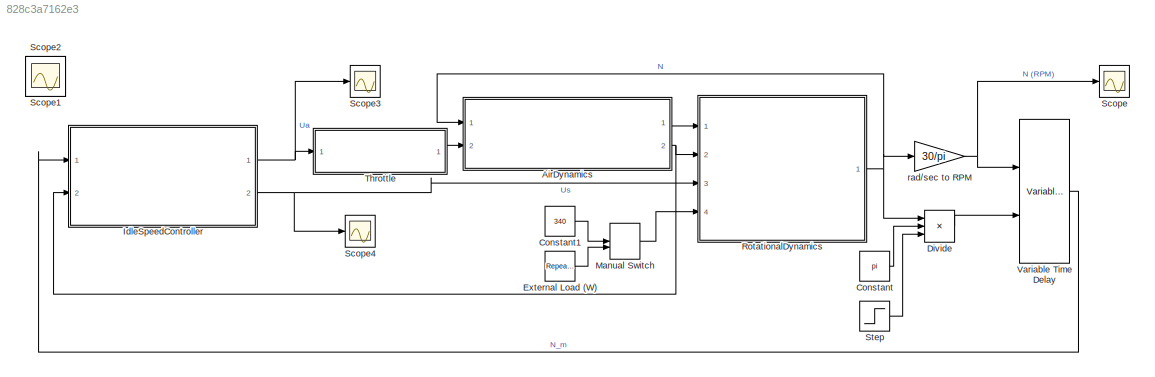
MODEL slx_828c3a7162e3
KIND model
CONFIG AbsTol = auto
CONFIG EnableMultiTasking = on
CONFIG FixedStep = 0.01
CONFIG InitFcn = IdleSpeedSimParameters\n
CONFIG MaxStep = auto
CONFIG MinStep = auto
CONFIG RelTol = 1e-2
CONFIG SampleTimeConstraint = Unconstrained
CONFIG SolverName = FixedStepAuto
CONFIG StartTime = 0.0
CONFIG StopFcn = IdleSpeedAutoGrading
CONFIG StopTime = 80
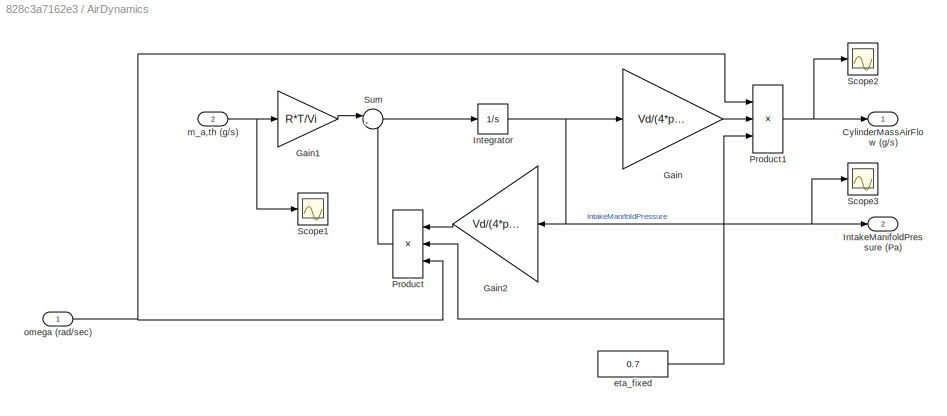
BLOCK [SubSystem] AirDynamics
  Ports = [2, 2]
  RequestExecContextInheritance = off
BLOCK [Outport] AirDynamics/CylinderMassAirFlow (g//s)
  VectorParamsAs1DForOutWhenUnconnected = off
BLOCK [Gain] AirDynamics/Gain
  Gain = Vd/(4*pi*R*T)
BLOCK [Gain] AirDynamics/Gain1
  Gain = R*T/Vi
BLOCK [Gain] AirDynamics/Gain2
  Gain = Vd/(4*pi*Vi)
BLOCK [Outport] AirDynamics/IntakeManifoldPressure (Pa)
  Port = 2
  VectorParamsAs1DForOutWhenUnconnected = off
BLOCK [Integrator] AirDynamics/Integrator
  InitialCondition = 38500
  Ports = [1, 1]
BLOCK [Product] AirDynamics/Product
  Inputs = 3
  Ports = [3, 1]
BLOCK [Product] AirDynamics/Product1
  Inputs = 3
  Ports = [3, 1]
BLOCK [Scope] AirDynamics/Scope1
  Floating = off
  NumInputPorts = 1
  Ports = [1]
  ScopeSpecificationString = Simulink.scopes.TimeScopeBlockCfg('CurrentConfiguration', extmgr.ConfigurationSet(extmgr.Configuration('Core','General UI',true),extmgr.Configuration('Core','Source UI',true),extmgr.Configuration('Sources','WiredSimulink',true,'DataLoggingVariableName','ScopeData9','DataLoggingSaveFormat','StructureWithTime','DataLoggingLimitDataPoints',true,'DataLoggingDecimation','1','DataLoggingDecimateData',tr...<+1718ch>
BLOCK [Scope] AirDynamics/Scope2
  Floating = off
  NumInputPorts = 1
  Ports = [1]
  ScopeSpecificationString = Simulink.scopes.TimeScopeBlockCfg('CurrentConfiguration', extmgr.ConfigurationSet(extmgr.Configuration('Core','General UI',true),extmgr.Configuration('Core','Source UI',true),extmgr.Configuration('Sources','WiredSimulink',true,'DataLoggingVariableName','ScopeData10','DataLoggingSaveFormat','StructureWithTime','DataLoggingDecimation','1','DataLoggingDecimateData',true),extmgr.Configuration('Visuals...<+1646ch>
BLOCK [Scope] AirDynamics/Scope3
  Floating = off
  NumInputPorts = 1
  Ports = [1]
  ScopeSpecificationString = Simulink.scopes.TimeScopeBlockCfg('CurrentConfiguration', extmgr.ConfigurationSet(extmgr.Configuration('Core','General UI',true),extmgr.Configuration('Core','Source UI',true),extmgr.Configuration('Sources','WiredSimulink',true,'DataLoggingVariableName','ScopeData5','DataLoggingSaveFormat','StructureWithTime','DataLoggingDecimation','1','DataLoggingDecimateData',true),extmgr.Configuration('Visuals'...<+1763ch>
BLOCK [Sum] AirDynamics/Sum
  Inputs = |+-
  Ports = [2, 1]
BLOCK [Constant] AirDynamics/eta_fixed
  Value = 0.7
BLOCK [Inport] AirDynamics/m_a,th (g//s)
  Port = 2
BLOCK [Inport] AirDynamics/omega (rad//sec)
BLOCK [Constant] Constant
  Value = pi
BLOCK [Constant] Constant1
  Value = 340
BLOCK [Product] Divide
  Inputs = /**
  Ports = [3, 1]
BLOCK [Reference] External Load (W)  REF=simulink/Sources/Repeating
Sequence
  Ports = [0, 1]
  SourceBlock = simulink/Sources/Repeating\nSequence
  SourceProductBaseCode = SL
  SourceType = Repeating table
BLOCK [ModelReference] IdleSpeedController
  ModelNameDialog = IdleSpeedController
  ModelReferenceVersion = 7.4
  Ports = [2, 2]
BLOCK [ManualSwitch] Manual Switch
  CurrentSetting = 0
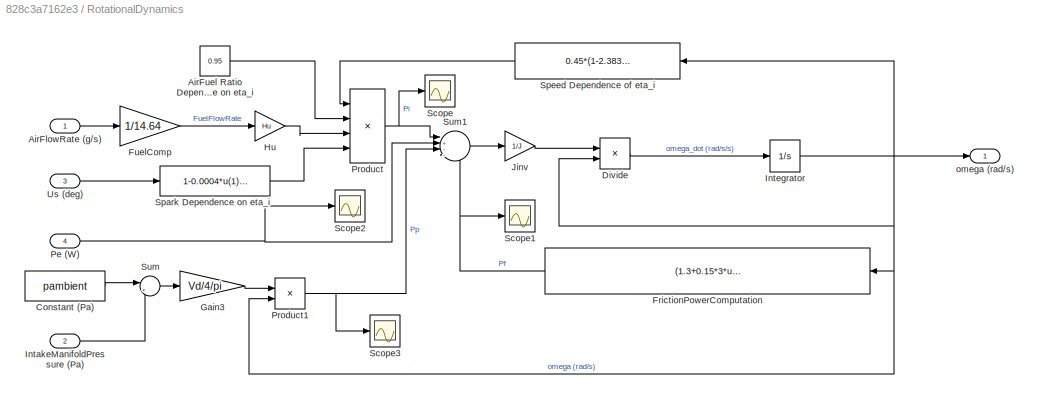
BLOCK [SubSystem] RotationalDynamics
  Ports = [4, 1]
  RequestExecContextInheritance = off
BLOCK [Inport] RotationalDynamics/AirFlowRate (g//s)
BLOCK [Constant] RotationalDynamics/AirFuel Ratio Dependence on eta_i
  Value = 0.95
BLOCK [Constant] RotationalDynamics/Constant (Pa)
  Value = pambient
BLOCK [Product] RotationalDynamics/Divide
  Inputs = */
  Ports = [2, 1]
BLOCK [Fcn] RotationalDynamics/FrictionPowerComputation
  Expr = (1.3+0.15*3*u(1)/100/pi+0.05*(3*u(1)/100/pi)^2)*1e5*Vd*u(1)/4/pi
BLOCK [Gain] RotationalDynamics/FuelComp
  Gain = 1/14.64
BLOCK [Gain] RotationalDynamics/Gain3
  Gain = Vd/4/pi
BLOCK [Gain] RotationalDynamics/Hu
  Gain = Hu
BLOCK [Inport] RotationalDynamics/IntakeManifoldPressure (Pa)
  Port = 2
BLOCK [Integrator] RotationalDynamics/Integrator
  InitialCondition = 600*pi/30
  Ports = [1, 1]
BLOCK [Gain] RotationalDynamics/Jinv
  Gain = 1/J
BLOCK [Inport] RotationalDynamics/Pe (W)
  Port = 4
BLOCK [Product] RotationalDynamics/Product
  Inputs = 4
  Ports = [4, 1]
BLOCK [Product] RotationalDynamics/Product1
  Ports = [2, 1]
BLOCK [Scope] RotationalDynamics/Scope
  Floating = off
  NumInputPorts = 1
  Ports = [1]
  ScopeSpecificationString = Simulink.scopes.TimeScopeBlockCfg('CurrentConfiguration', extmgr.ConfigurationSet(extmgr.Configuration('Core','General UI',true),extmgr.Configuration('Core','Source UI',true),extmgr.Configuration('Sources','WiredSimulink',true,'DataLoggingVariableName','ScopeData1','DataLoggingSaveFormat','StructureWithTime','DataLoggingLimitDataPoints',true,'DataLoggingDecimation','1','DataLoggingDecimateData',tr...<+1747ch>
BLOCK [Scope] RotationalDynamics/Scope1
  Floating = off
  NumInputPorts = 1
  Ports = [1]
  ScopeSpecificationString = Simulink.scopes.TimeScopeBlockCfg('CurrentConfiguration', extmgr.ConfigurationSet(extmgr.Configuration('Core','General UI',true),extmgr.Configuration('Core','Source UI',true),extmgr.Configuration('Sources','WiredSimulink',true,'DataLoggingVariableName','ScopeData2','DataLoggingSaveFormat','StructureWithTime','DataLoggingLimitDataPoints',true,'DataLoggingDecimation','1','DataLoggingDecimateData',tr...<+1714ch>
BLOCK [Scope] RotationalDynamics/Scope2
  Floating = off
  NumInputPorts = 1
  Ports = [1]
  ScopeSpecificationString = C++SS(StrPVP('Location','[984, 671, 1308, 910]'),StrPVP('Open','off'),MxPVP('AxesTitles',54,'struct(''axes1'',''%<SignalLabel>'')'),MxPVP('ScopeGraphics',57,'struct(''FigureColor'',''[0.5 0.5 0.5]'',''AxesColor'',''[0 0 0]'',''AxesTickColor'',''[1 1 1]'',''LineColors'',''[1 1 0;1 0 1;0 1 1;1 0 0;0 1 0;0 0 1]'',''LineStyles'',''-|-|-|-|-|-'',''LineWidths'',''[0.5 0.5 0.5 0.5 0.5 0.5]'',''MarkerStyl...<+319ch>
BLOCK [Scope] RotationalDynamics/Scope3
  Floating = off
  NumInputPorts = 1
  Ports = [1]
  ScopeSpecificationString = C++SS(StrPVP('Location','[118, 495, 442, 734]'),StrPVP('Open','off'),MxPVP('AxesTitles',54,'struct(''axes1'',''%<SignalLabel>'')'),MxPVP('ScopeGraphics',57,'struct(''FigureColor'',''[0.5 0.5 0.5]'',''AxesColor'',''[0 0 0]'',''AxesTickColor'',''[1 1 1]'',''LineColors'',''[1 1 0;1 0 1;0 1 1;1 0 0;0 1 0;0 0 1]'',''LineStyles'',''-|-|-|-|-|-'',''LineWidths'',''[0.5 0.5 0.5 0.5 0.5 0.5]'',''MarkerStyle...<+320ch>
BLOCK [Fcn] RotationalDynamics/Spark Dependence on eta_i
  Expr = 1-0.0004*u(1)^2
BLOCK [Fcn] RotationalDynamics/Speed Dependence of eta_i
  Expr = 0.45*(1-2.383*(u(1)*30/pi)^(-0.3))
BLOCK [Sum] RotationalDynamics/Sum
  Inputs = |+-
  Ports = [2, 1]
BLOCK [Sum] RotationalDynamics/Sum1
  Inputs = |+---
  Ports = [4, 1]
BLOCK [Inport] RotationalDynamics/Us (deg)
  Port = 3
BLOCK [Outport] RotationalDynamics/omega (rad//s)
  VectorParamsAs1DForOutWhenUnconnected = off
BLOCK [Scope] Scope
  Floating = off
  NumInputPorts = 1
  Ports = [1]
  ScopeSpecificationString = Simulink.scopes.TimeScopeBlockCfg('CurrentConfiguration', extmgr.ConfigurationSet(extmgr.Configuration('Core','General UI',true),extmgr.Configuration('Core','Source UI',true),extmgr.Configuration('Sources','WiredSimulink',true,'DataLoggingVariableName','N','DataLogging',true,'DataLoggingSaveFormat','Array'),extmgr.Configuration('Visuals','Time Domain',true,'SerializedDisplays',{struct('MinYLimReal...<+1532ch>
BLOCK [Scope] Scope1
  Floating = off
  IOType = viewer
  NumInputPorts = 1
  Ports = []
  ScopeSpecificationString = Simulink.scopes.TimeScopeBlockCfg('CurrentConfiguration', extmgr.ConfigurationSet(extmgr.Configuration('Core','General UI',true),extmgr.Configuration('Core','Source UI',true),extmgr.Configuration('Sources','WiredSimulink',true,'DataLoggingMaxPoints','7500','DataLoggingLimitDataPoints',true,'DataLoggingSaveFormat','Array','DataLoggingDecimation','1','DataLoggingDecimateData',true),extmgr.Configurat...<+908ch>
BLOCK [Scope] Scope2
  Floating = off
  IOType = viewer
  NumInputPorts = 1
  Ports = []
  ScopeSpecificationString = Simulink.scopes.TimeScopeBlockCfg('CurrentConfiguration', extmgr.ConfigurationSet(extmgr.Configuration('Core','General UI',true),extmgr.Configuration('Core','Source UI',true),extmgr.Configuration('Sources','WiredSimulink',true,'DataLoggingVariableName','ScopeData1','DataLoggingMaxPoints','10000','DataLoggingLimitDataPoints',true,'DataLoggingSaveFormat','Array','DataLoggingDecimation','1','DataLogg...<+1648ch>
BLOCK [Scope] Scope3
  Floating = off
  NumInputPorts = 1
  Ports = [1]
  ScopeSpecificationString = Simulink.scopes.TimeScopeBlockCfg('CurrentConfiguration', extmgr.ConfigurationSet(extmgr.Configuration('Core','General UI',true),extmgr.Configuration('Core','Source UI',true),extmgr.Configuration('Sources','WiredSimulink',true,'DataLoggingVariableName','Ua','DataLoggingSaveFormat','Array','DataLoggingDecimation','1','DataLoggingDecimateData',true,'DataLogging',true),extmgr.Configuration('Visuals',...<+1517ch>
BLOCK [Scope] Scope4
  Floating = off
  NumInputPorts = 1
  Ports = [1]
  ScopeSpecificationString = Simulink.scopes.TimeScopeBlockCfg('CurrentConfiguration', extmgr.ConfigurationSet(extmgr.Configuration('Core','General UI',true),extmgr.Configuration('Core','Source UI',true),extmgr.Configuration('Sources','WiredSimulink',true,'DataLoggingVariableName','Us','DataLoggingSaveFormat','Array','DataLoggingDecimation','1','DataLoggingDecimateData',true,'DataLogging',true),extmgr.Configuration('Visuals',...<+1560ch>
BLOCK [Step] Step
  SampleTime = 0
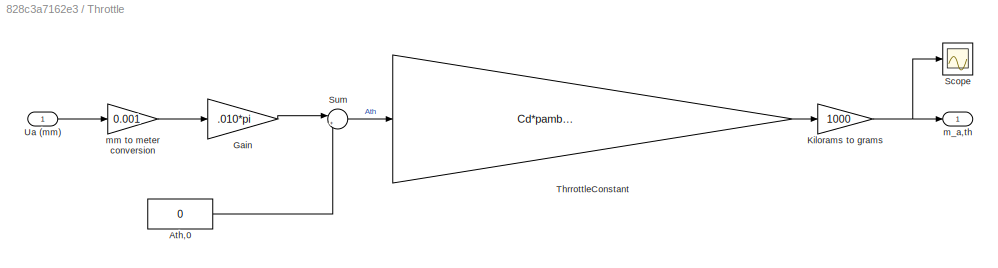
BLOCK [SubSystem] Throttle
  Ports = [1, 1]
  RequestExecContextInheritance = off
BLOCK [Constant] Throttle/Ath,0
  Value = 0
BLOCK [Gain] Throttle/Gain
  Gain = .010*pi
BLOCK [Gain] Throttle/Kilorams to grams
  Gain = 1000
BLOCK [Scope] Throttle/Scope
  Floating = off
  NumInputPorts = 1
  Ports = [1]
  ScopeSpecificationString = C++SS(StrPVP('Location','[188, 390, 512, 629]'),StrPVP('Open','off'),MxPVP('AxesTitles',54,'struct(''axes1'',''%<SignalLabel>'')'),MxPVP('ScopeGraphics',57,'struct(''FigureColor'',''[0.5 0.5 0.5]'',''AxesColor'',''[0 0 0]'',''AxesTickColor'',''[1 1 1]'',''LineColors'',''[1 1 0;1 0 1;0 1 1;1 0 0;0 1 0;0 0 1]'',''LineStyles'',''-|-|-|-|-|-'',''LineWidths'',''[0.5 0.5 0.5 0.5 0.5 0.5]'',''MarkerStyle...<+271ch>
BLOCK [Sum] Throttle/Sum
  Inputs = |++
  Ports = [2, 1]
BLOCK [Gain] Throttle/ThrrottleConstant
  Gain = Cd*pambient*sqrt(gamma/R/T)*(2/(gamma+1))^((gamma+1)/(2*gamma-2))
BLOCK [Inport] Throttle/Ua (mm)
BLOCK [Outport] Throttle/m_a,th
  VectorParamsAs1DForOutWhenUnconnected = off
BLOCK [Gain] Throttle/mm to meter conversion
  Gain = 0.001
BLOCK [VariableTransportDelay] Variable Time Delay
  MaximumDelay = 10
  Ports = [2, 1]
  ZeroDelay = on
BLOCK [Gain] rad//sec to RPM
  Gain = 30/pi
LINE AirDynamics/Gain1:1 -> AirDynamics/Sum:1
LINE AirDynamics/Gain2:1 -> AirDynamics/Product:1
LINE AirDynamics/Gain:1 -> AirDynamics/Product1:2
NET AirDynamics/Integrator:1 -> AirDynamics/Gain2:1, AirDynamics/Gain:1, AirDynamics/IntakeManifoldPressure (Pa):1, AirDynamics/Scope3:1
NET AirDynamics/Product1:1 -> AirDynamics/CylinderMassAirFlow (g//s):1, AirDynamics/Scope2:1
LINE AirDynamics/Product:1 -> AirDynamics/Sum:2
LINE AirDynamics/Sum:1 -> AirDynamics/Integrator:1
NET AirDynamics/eta_fixed:1 -> AirDynamics/Product1:3, AirDynamics/Product:2
NET AirDynamics/m_a,th (g//s):1 -> AirDynamics/Gain1:1, AirDynamics/Scope1:1
NET AirDynamics/omega (rad//sec):1 -> AirDynamics/Product1:1, AirDynamics/Product:3
LINE AirDynamics:1 -> RotationalDynamics:1
NET AirDynamics:2 -> IdleSpeedController:2, RotationalDynamics:2
LINE Constant1:1 -> Manual Switch:1
LINE Constant:1 -> Divide:2
LINE Divide:1 -> Variable Time Delay:2
LINE External Load (W):1 -> Manual Switch:2
NET IdleSpeedController:1 -> Scope3:1, Throttle:1
NET IdleSpeedController:2 -> RotationalDynamics:3, Scope4:1
LINE Manual Switch:1 -> RotationalDynamics:4
LINE RotationalDynamics/AirFlowRate (g//s):1 -> RotationalDynamics/FuelComp:1
LINE RotationalDynamics/AirFuel Ratio Dependence on eta_i:1 -> RotationalDynamics/Product:2
LINE RotationalDynamics/Constant (Pa):1 -> RotationalDynamics/Sum:1
LINE RotationalDynamics/Divide:1 -> RotationalDynamics/Integrator:1
NET RotationalDynamics/FrictionPowerComputation:1 -> RotationalDynamics/Scope1:1, RotationalDynamics/Sum1:4
LINE RotationalDynamics/FuelComp:1 -> RotationalDynamics/Hu:1
LINE RotationalDynamics/Gain3:1 -> RotationalDynamics/Product1:1
LINE RotationalDynamics/Hu:1 -> RotationalDynamics/Product:3
LINE RotationalDynamics/IntakeManifoldPressure (Pa):1 -> RotationalDynamics/Sum:2
NET RotationalDynamics/Integrator:1 -> RotationalDynamics/Divide:2, RotationalDynamics/FrictionPowerComputation:1, RotationalDynamics/Product1:2, RotationalDynamics/Speed Dependence of eta_i:1, RotationalDynamics/omega (rad//s):1
LINE RotationalDynamics/Jinv:1 -> RotationalDynamics/Divide:1
NET RotationalDynamics/Pe (W):1 -> RotationalDynamics/Scope2:1, RotationalDynamics/Sum1:2
NET RotationalDynamics/Product1:1 -> RotationalDynamics/Scope3:1, RotationalDynamics/Sum1:3
NET RotationalDynamics/Product:1 -> RotationalDynamics/Scope:1, RotationalDynamics/Sum1:1
LINE RotationalDynamics/Spark Dependence on eta_i:1 -> RotationalDynamics/Product:4
LINE RotationalDynamics/Speed Dependence of eta_i:1 -> RotationalDynamics/Product:1
LINE RotationalDynamics/Sum1:1 -> RotationalDynamics/Jinv:1
LINE RotationalDynamics/Sum:1 -> RotationalDynamics/Gain3:1
LINE RotationalDynamics/Us (deg):1 -> RotationalDynamics/Spark Dependence on eta_i:1
NET RotationalDynamics:1 -> AirDynamics:1, Divide:1, rad//sec to RPM:1
LINE Step:1 -> Divide:3
LINE Throttle/Ath,0:1 -> Throttle/Sum:2
LINE Throttle/Gain:1 -> Throttle/Sum:1
NET Throttle/Kilorams to grams:1 -> Throttle/Scope:1, Throttle/m_a,th:1
LINE Throttle/Sum:1 -> Throttle/ThrrottleConstant:1
LINE Throttle/ThrrottleConstant:1 -> Throttle/Kilorams to grams:1
LINE Throttle/Ua (mm):1 -> Throttle/mm to meter conversion:1
LINE Throttle/mm to meter conversion:1 -> Throttle/Gain:1
LINE Throttle:1 -> AirDynamics:2
LINE Variable Time Delay:1 -> IdleSpeedController:1
NET rad//sec to RPM:1 -> Scope:1, Variable Time Delay:1
note: NET lines group one-source signal fan-out (src -> all destinations, sorted); 1:1 wires keep LINE
